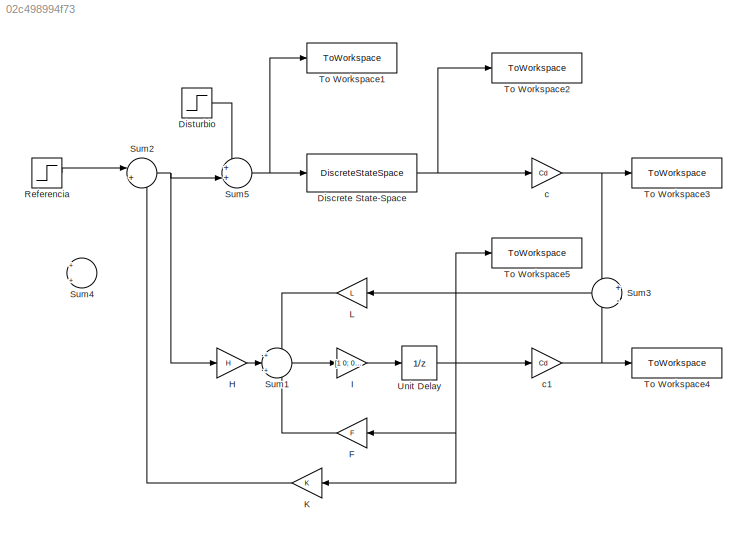
MODEL slx_02c498994f73
KIND model
CONFIG AbsTol = auto
CONFIG EnableMultiTasking = off
CONFIG FixedStep = auto
CONFIG MaxStep = auto
CONFIG MinStep = auto
CONFIG RelTol = 1e-3
CONFIG SampleTimeConstraint = Unconstrained
CONFIG SolverName = VariableStepAuto
CONFIG StartTime = 0.0
CONFIG StopTime = 30.0
BLOCK [DiscreteStateSpace] Discrete State-Space
  A = F
  B = H
  C = [1 0; 0 1]
  D = [0;0]
  InitialCondition = X0_SIS
  SampleTime = T0
BLOCK [Step] Disturbio
  After = d
  SampleTime = 0
  Time = td
BLOCK [Gain] F
  Gain = F
  Multiplication = Matrix(K*u)
BLOCK [Gain] H
  Gain = H
  Multiplication = Matrix(K*u)
BLOCK [Gain] I
  Gain = [1 0; 0 1]
  Multiplication = Matrix(K*u)
BLOCK [Gain] K
  Gain = K
  Multiplication = Matrix(K*u)
BLOCK [Gain] L
  Gain = L
  Multiplication = Matrix(K*u)
BLOCK [Step] Referencia
  After = R
  SampleTime = 0
  Time = 0
BLOCK [Sum] Sum1
  Inputs = +|+|+
BLOCK [Sum] Sum2
  Inputs = |+-
BLOCK [Sum] Sum3
  Inputs = +|-
BLOCK [Sum] Sum4
  Inputs = +|+|-
BLOCK [Sum] Sum5
  Inputs = ++|
BLOCK [ToWorkspace] To Workspace1
  FixptAsFi = on
  MaxDataPoints = inf
  SampleTime = -1
  SaveFormat = Timeseries
  VariableName = u
BLOCK [ToWorkspace] To Workspace2
  FixptAsFi = on
  MaxDataPoints = inf
  SampleTime = -1
  SaveFormat = Timeseries
  VariableName = xc
BLOCK [ToWorkspace] To Workspace3
  FixptAsFi = on
  MaxDataPoints = inf
  SampleTime = -1
  SaveFormat = Timeseries
  VariableName = yc
BLOCK [ToWorkspace] To Workspace4
  FixptAsFi = on
  MaxDataPoints = inf
  SampleTime = -1
  SaveFormat = Timeseries
  VariableName = yo
BLOCK [ToWorkspace] To Workspace5
  FixptAsFi = on
  MaxDataPoints = inf
  SampleTime = -1
  SaveFormat = Timeseries
  VariableName = xo
BLOCK [UnitDelay] Unit Delay
  HasFrameUpgradeWarning = on
  InitialCondition = X0_OBS
  SampleTime = T0
BLOCK [Gain] c
  Gain = Cd
  Multiplication = Matrix(K*u)
BLOCK [Gain] c1
  Gain = Cd
  Multiplication = Matrix(K*u)
NET Discrete State-Space:1 -> To Workspace2:1, c:1
LINE Disturbio:1 -> Sum5:1
LINE F:1 -> Sum1:3
LINE H:1 -> Sum1:2
LINE I:1 -> Unit Delay:1
LINE K:1 -> Sum2:2
LINE L:1 -> Sum1:1
LINE Referencia:1 -> Sum2:1
LINE Sum1:1 -> I:1
NET Sum2:1 -> H:1, Sum5:2
LINE Sum3:1 -> L:1
NET Sum5:1 -> Discrete State-Space:1, To Workspace1:1
NET Unit Delay:1 -> F:1, K:1, To Workspace5:1, c1:1
NET c1:1 -> Sum3:2, To Workspace4:1
NET c:1 -> Sum3:1, To Workspace3:1
note: NET lines group one-source signal fan-out (src -> all destinations, sorted); 1:1 wires keep LINE
